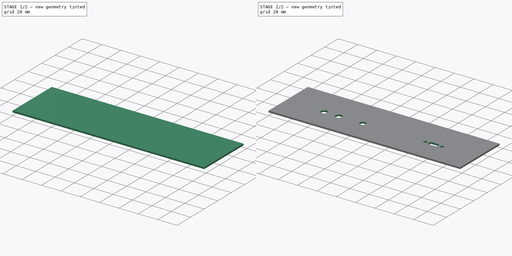
[diagram: build sequence overview — one tinted view per stage of 2, left to right]
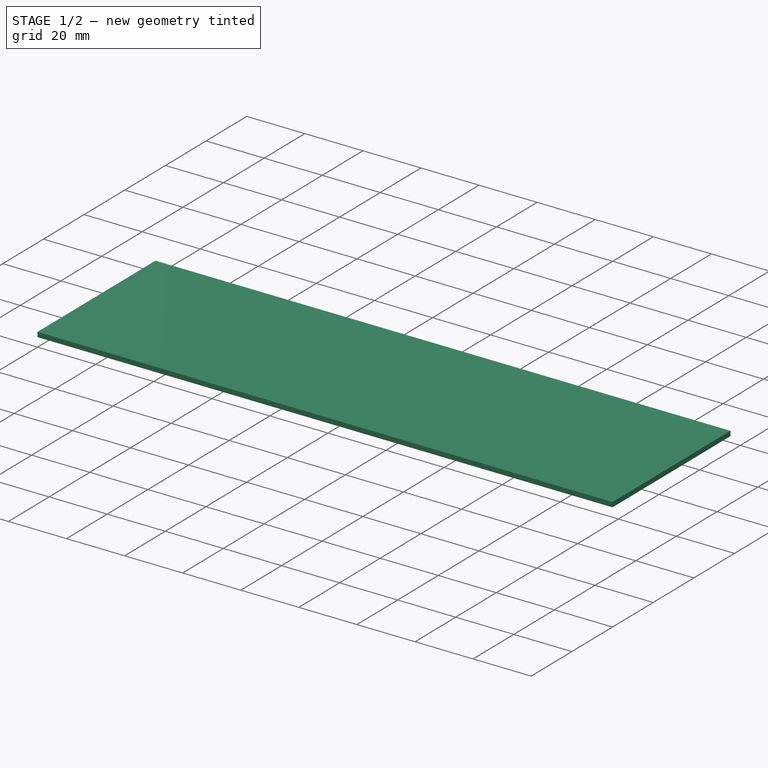
[diagram: stage 1 of 2 — iso view after this stage's code; geometry added in this stage tinted green]
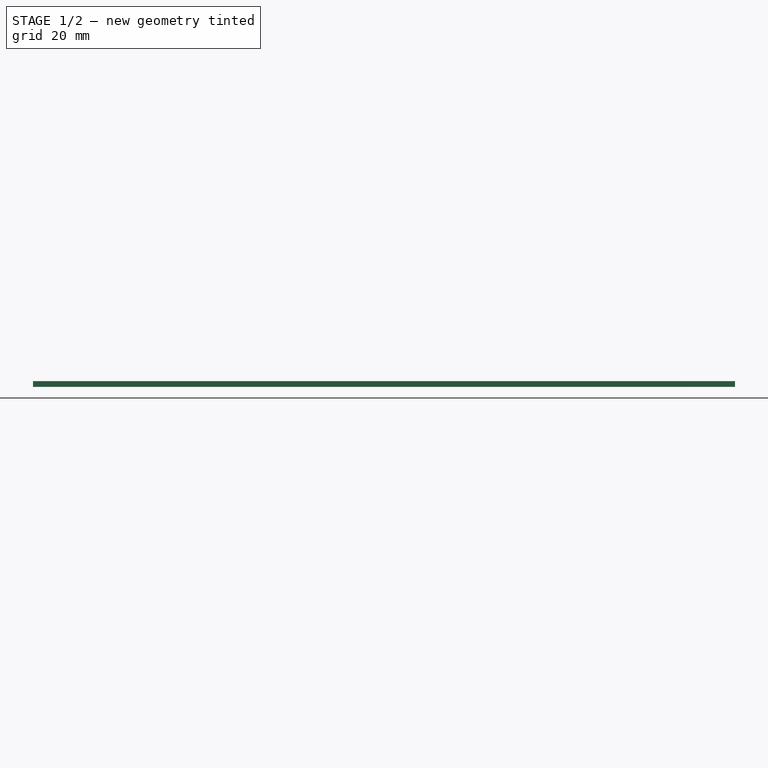
[diagram: stage 1 of 2 — front view after this stage's code; geometry added in this stage tinted green]
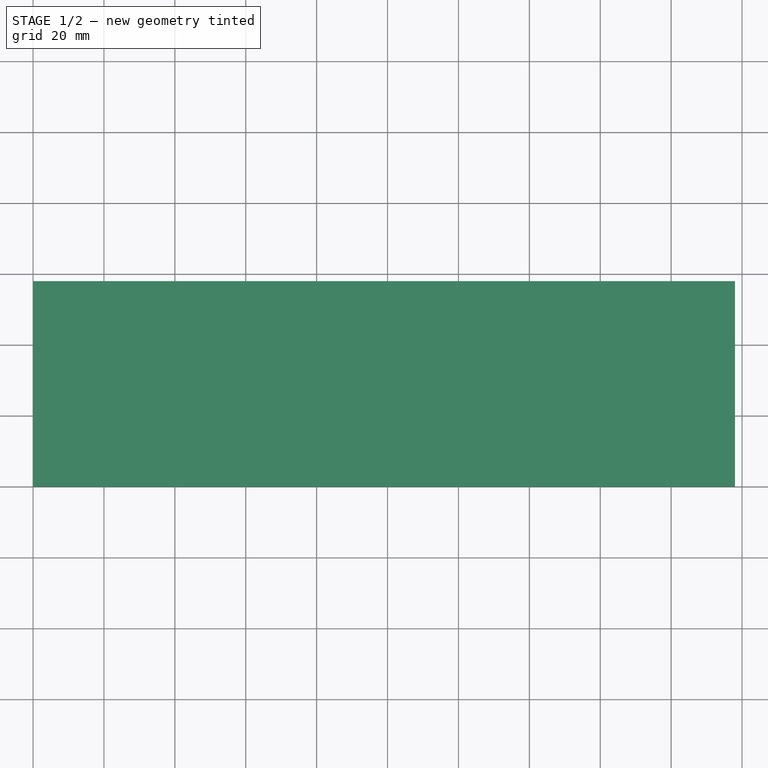
[diagram: stage 1 of 2 — top view after this stage's code; geometry added in this stage tinted green]
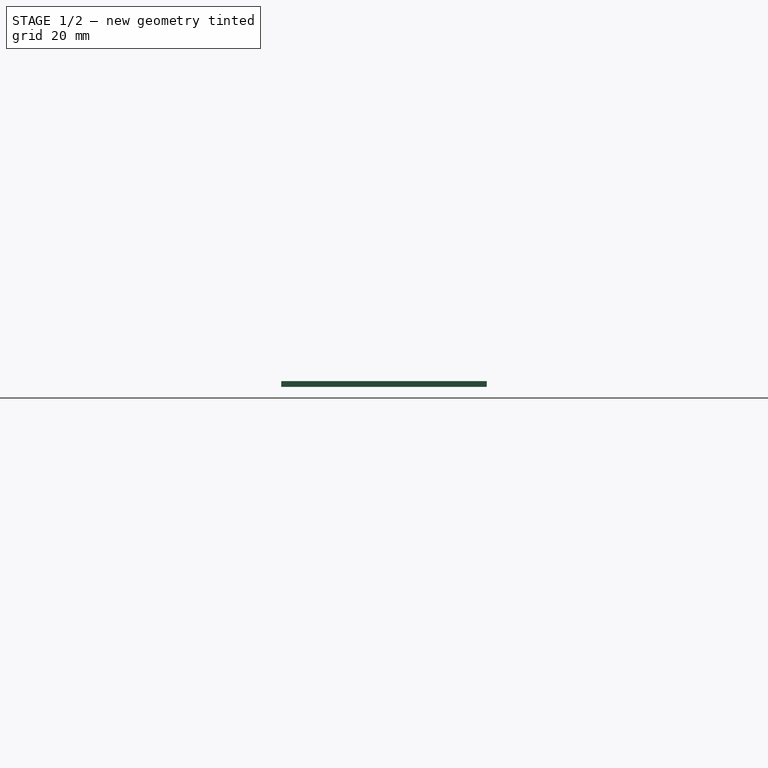
[diagram: stage 1 of 2 — right view after this stage's code; geometry added in this stage tinted green]
FCSTD DOCUMENT  (FreeCAD 0.18R4 (GitTag))
Label: back panel dbk
License: All rights reserved
LicenseURL: http://en.wikipedia.org/wiki/All_rights_reserved
objects: Sketcher::SketchObject×2, PartDesign::Pad×1, PartDesign::Pocket×1, PartDesign::Body×1
note: 7 computed .brp shape members not serialized (recipe doc carries the construction recipe); baked Part::Feature solids carry a one-line shape summary decoded from their .brp

FEATURE [Sketcher::SketchObject] Sketch
  MapMode = 5
  Support = -> [XY_Plane]
  sketch-geometry (4):
    g0: LineSegment StartX=0 StartY=0 StartZ=0 EndX=198 EndY=0 EndZ=0
    g1: LineSegment StartX=198 StartY=0 StartZ=0 EndX=198 EndY=58 EndZ=0
    g2: LineSegment StartX=198 StartY=58 StartZ=0 EndX=0 EndY=58 EndZ=0
    g3: LineSegment StartX=0 StartY=58 StartZ=0 EndX=0 EndY=0 EndZ=0
  constraints (11):
    c: Coincident(g0,g1)
    c: Coincident(g1,g2)
    c: Coincident(g2,g3)
    c: Coincident(g3,g0)
    c: Horizontal(g0)
    c: Horizontal(g2)
    c: Vertical(g1)
    c: Vertical(g3)
    c: Coincident(g0,g-1)
    c: DistanceY(g3,g3) = 58
    c: DistanceX(g0,g0) = 198
FEATURE [PartDesign::Pad] Pad
  Length = 1.65
  Length2 = 100
  Profile = -> Sketch
  Type = 0
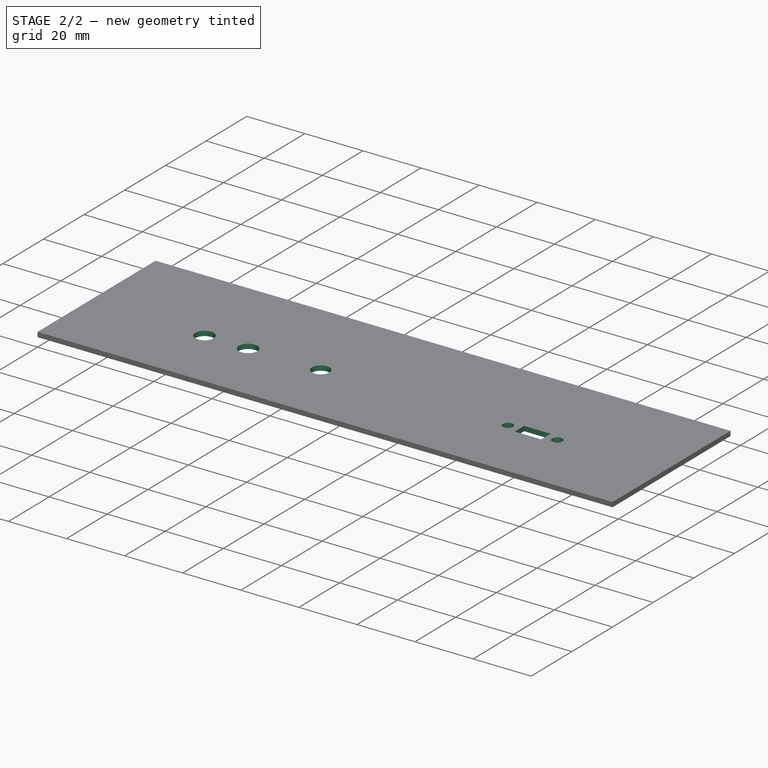
[diagram: stage 2 of 2 — iso view after this stage's code; geometry added in this stage tinted green]
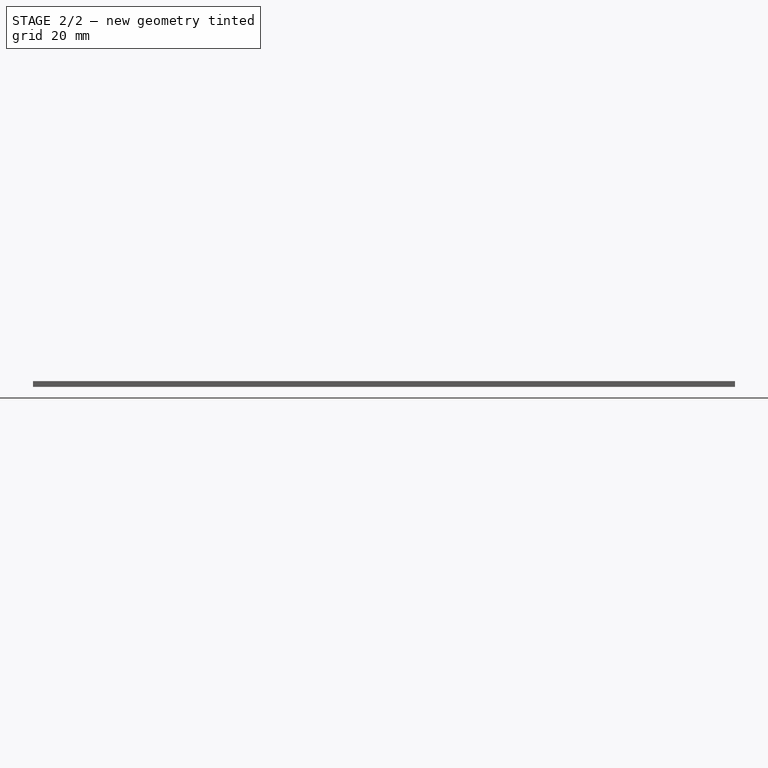
[diagram: stage 2 of 2 — front view after this stage's code; geometry added in this stage tinted green]
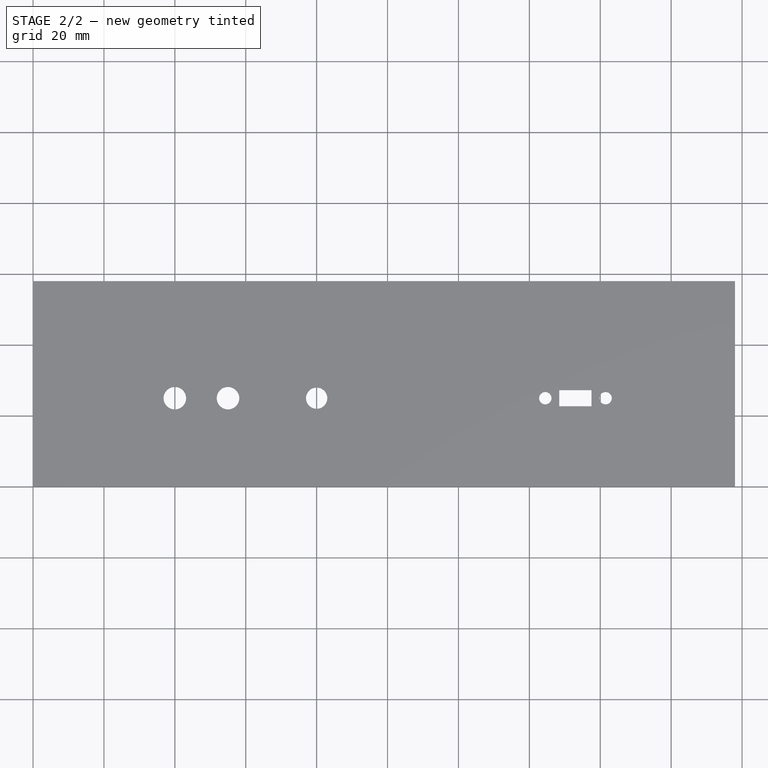
[diagram: stage 2 of 2 — top view after this stage's code; geometry added in this stage tinted green]
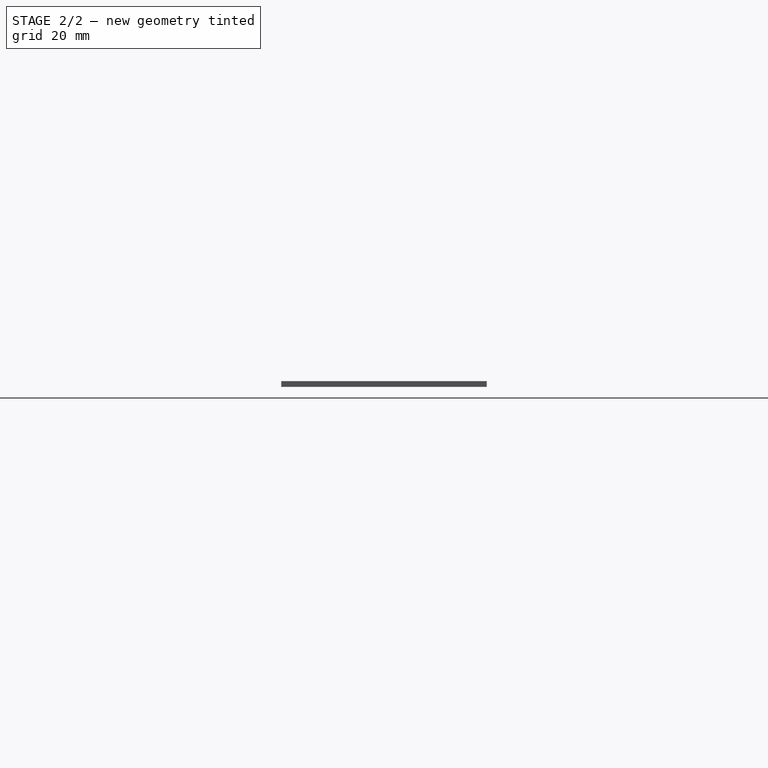
[diagram: stage 2 of 2 — right view after this stage's code; geometry added in this stage tinted green]
FEATURE [Sketcher::SketchObject] Sketch001
  MapMode = 5
  Placement = pos=(0,0,1.65) rot=(0,0,1;0rad)
  Support = -> [Pad]
  sketch-geometry (18):
    g0: LineSegment StartX=148.45 StartY=27.3 StartZ=0 EndX=157.55 EndY=27.3 EndZ=0
    g1: LineSegment StartX=157.55 StartY=27.3 StartZ=0 EndX=157.55 EndY=22.7 EndZ=0
    g2: LineSegment StartX=157.55 StartY=22.7 StartZ=0 EndX=148.45 EndY=22.7 EndZ=0
    g3: LineSegment StartX=148.45 StartY=22.7 StartZ=0 EndX=148.45 EndY=27.3 EndZ=0
    g4: Circle CenterX=144.5 CenterY=25 CenterZ=0 NormalX=0 NormalY=0 NormalZ=1 AngleXU=0 Radius=1.75
    g5: Circle CenterX=161.5 CenterY=25 CenterZ=0 NormalX=0 NormalY=0 NormalZ=1 AngleXU=0 Radius=1.75
    g6: LineSegment [constr] StartX=144.5 StartY=25 StartZ=0 EndX=161.5 EndY=25 EndZ=0
    g7: LineSegment [constr] StartX=148.45 StartY=22.7 StartZ=0 EndX=157.55 EndY=27.3 EndZ=0
    g8: LineSegment [constr] StartX=148.45 StartY=27.3 StartZ=0 EndX=157.55 EndY=22.7 EndZ=0
    g9: GeomPoint X=153 Y=25 Z=0
    g10: LineSegment [constr] StartX=0 StartY=0 StartZ=0 EndX=198 EndY=0 EndZ=0
    g11: LineSegment [constr] StartX=198 StartY=0 StartZ=0 EndX=198 EndY=58 EndZ=0
    g12: LineSegment [constr] StartX=198 StartY=58 StartZ=0 EndX=0 EndY=58 EndZ=0
    g13: LineSegment [constr] StartX=0 StartY=58 StartZ=0 EndX=0 EndY=0 EndZ=0
    g14: Circle CenterX=80 CenterY=25 CenterZ=0 NormalX=0 NormalY=0 NormalZ=1 AngleXU=0 Radius=3
    g15: Circle CenterX=40 CenterY=25 CenterZ=0 NormalX=0 NormalY=0 NormalZ=1 AngleXU=0 Radius=3.175
    g16: Circle CenterX=55 CenterY=25 CenterZ=0 NormalX=0 NormalY=0 NormalZ=1 AngleXU=0 Radius=3.175
    g17: LineSegment [constr] StartX=40 StartY=25 StartZ=0 EndX=55 EndY=25 EndZ=0
  constraints (47):
    c: Coincident(g0,g1)
    c: Coincident(g1,g2)
    c: Coincident(g2,g3)
    c: Coincident(g3,g0)
    c: Horizontal(g0)
    c: Horizontal(g2)
    c: Vertical(g1)
    c: Vertical(g3)
    c: DistanceX(g0,g0) = 9.1
    c: DistanceY(g1,g1) = 4.6
    c: Diameter(g4) = 3.5
    c: Equal(g4,g5) = 3.5
    c: Coincident(g4,g6)
    c: Coincident(g5,g6)
    c: Distance(g6) = 17
    c: Angle(g6) = 0
    c: Coincident(g8,g0)
    c: Coincident(g7,g2)
    c: Coincident(g8,g1)
    c: Coincident(g7,g0)
    c: PointOnObject(g9,g8)
    c: PointOnObject(g9,g7)
    c: Symmetric(g4,g5,g9)
    c: DistanceY(g-1,g9) = 25
    c: Coincident(g10,g11)
    c: Coincident(g11,g12)
    c: Coincident(g12,g13)
    c: Coincident(g13,g10)
    c: Horizontal(g10)
    c: Horizontal(g12)
    c: Vertical(g11)
    c: Vertical(g13)
    c: Coincident(g10,g-1)
    c: DistanceX(g11) = 198
    c: DistanceY(g11,g11) = 58
    c: DistanceX(g9,g10) = 45
    c: Diameter(g14) = 6
    c: Diameter(g15) = 6.35
    c: Equal(g15,g16) = 6.35
    c: Coincident(g15,g17)
    c: Coincident(g16,g17)
    c: Distance(g17) = 15
    c: Angle(g17) = 0
    c: PointOnObject(g14,g17)
    c: DistanceX(g16,g14) = 25
    c: PointOnObject(g14,g6)
    c: DistanceX(g-1,g15) = 40
FEATURE [PartDesign::Pocket] Pocket
  BaseFeature = -> Pad
  Length = 5
  Length2 = 100
  Profile = -> Sketch001
  Type = 0
FEATURE [PartDesign::Body] Body
  Group = -> [Sketch,Pad,Sketch001,Pocket]
  Origin = -> Origin
  Tip = -> Pocket
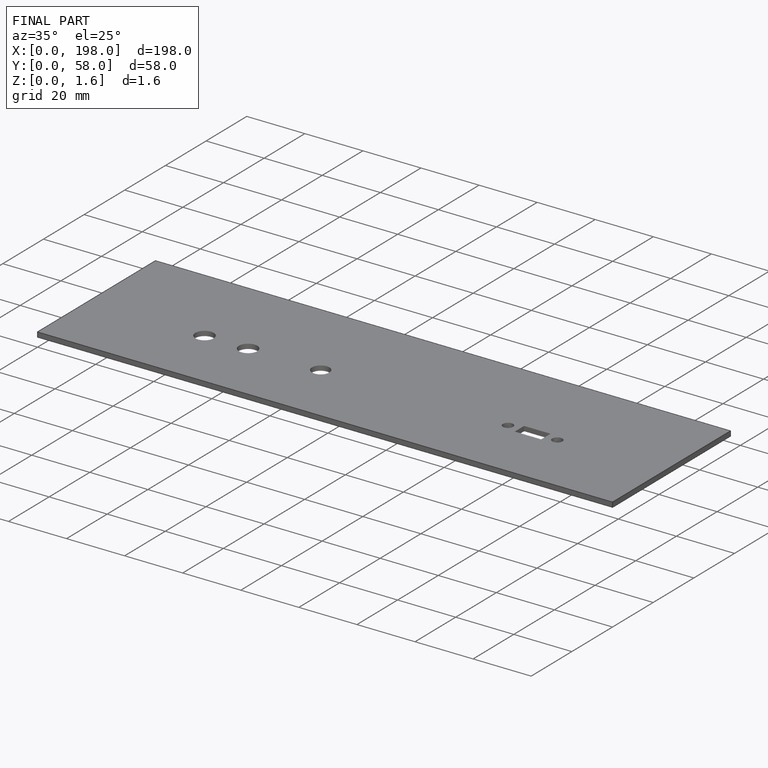
[diagram: finished part — iso view with bounding-box wireframe]
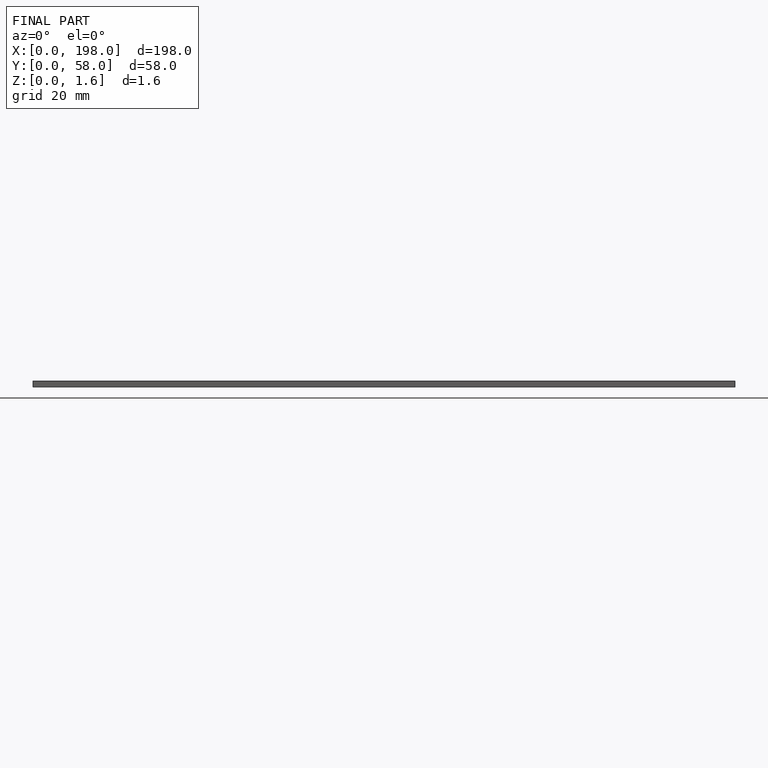
[diagram: finished part — front view with bounding-box wireframe]
